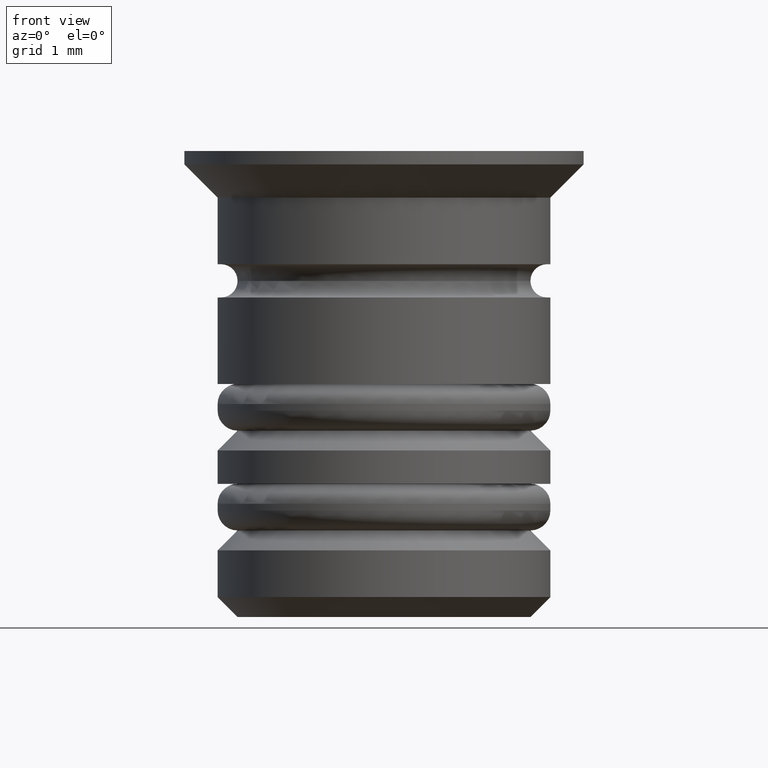
[diagram: clean part render]
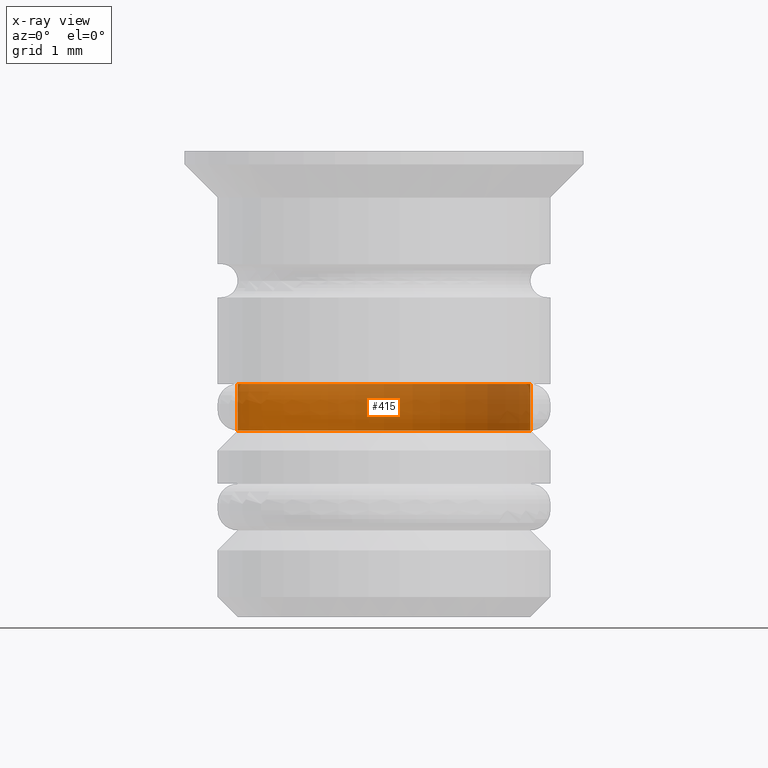
[diagram: x-ray — body ghosted, one internal face saturated and labeled with its STEP entity id]
A machine part, front view, then the same camera in x-ray: the body is ghosted and one INTERNAL B-rep face — a face not visible from any outside direction — is saturated and labeled: STEP entity #415.
In plain terms, the highlighted cylindrical surface (partial cylindrical patch) has radius 2.2 mm, axis along (-0, -0, 1).
Its self-contained STEP definition (entity closure, byte-faithful):
#71 = CIRCLE ( 'NONE', #751, 2.200000000000002398 ) ;
#75 = DIRECTION ( 'NONE',  ( -0.000000000000000000, -0.000000000000000000, 1.000000000000000000 ) ) ;
#129 = DIRECTION ( 'NONE',  ( -0.000000000000000000, -0.000000000000000000, 1.000000000000000000 ) ) ;
#143 = CYLINDRICAL_SURFACE ( 'NONE', #569, 2.200000000000002398 ) ;
#148 = VERTEX_POINT ( 'NONE', #174 ) ;
#174 = CARTESIAN_POINT ( 'NONE',  ( 2.200000000000001954, 0.000000000000000000, -3.500000000000003553 ) ) ;
#188 = ORIENTED_EDGE ( 'NONE', *, *, #1314, .F. ) ;
#415 = ADVANCED_FACE ( 'NONE', ( #1406 ), #143, .T. ) ;
#479 = ORIENTED_EDGE ( 'NONE', *, *, #642, .T. ) ;
#484 = VERTEX_POINT ( 'NONE', #1737 ) ;
#569 = AXIS2_PLACEMENT_3D ( 'NONE', #1673, #1131, #1666 ) ;
#642 = EDGE_CURVE ( 'NONE', #484, #1380, #1780, .T. ) ;
#671 = CARTESIAN_POINT ( 'NONE',  ( 2.200000000000002398, 0.000000000000000000, -4.200000000000010836 ) ) ;
#699 = DIRECTION ( 'NONE',  ( -1.000000000000000000, 0.000000000000000000, 0.000000000000000000 ) ) ;
#729 = ORIENTED_EDGE ( 'NONE', *, *, #1272, .T. ) ;
#751 = AXIS2_PLACEMENT_3D ( 'NONE', #1829, #129, #699 ) ;
#890 = VERTEX_POINT ( 'NONE', #671 ) ;
#904 = CARTESIAN_POINT ( 'NONE',  ( -2.200000000000002398, 2.694222958124179965E-16, 0.000000000000000000 ) ) ;
#911 = ORIENTED_EDGE ( 'NONE', *, *, #1405, .F. ) ;
#943 = CARTESIAN_POINT ( 'NONE',  ( 0.000000000000000000, 0.000000000000000000, -3.500000000000003553 ) ) ;
#966 = DIRECTION ( 'NONE',  ( 1.000000000000000000, 0.000000000000000000, 0.000000000000000000 ) ) ;
#1063 = AXIS2_PLACEMENT_3D ( 'NONE', #943, #1362, #966 ) ;
#1068 = CIRCLE ( 'NONE', #1063, 2.200000000000001954 ) ;
#1088 = LINE ( 'NONE', #1512, #1716 ) ;
#1098 = DIRECTION ( 'NONE',  ( -0.000000000000000000, -0.000000000000000000, 1.000000000000000000 ) ) ;
#1131 = DIRECTION ( 'NONE',  ( -0.000000000000000000, -0.000000000000000000, 1.000000000000000000 ) ) ;
#1272 = EDGE_CURVE ( 'NONE', #890, #484, #71, .T. ) ;
#1314 = EDGE_CURVE ( 'NONE', #148, #1380, #1068, .T. ) ;
#1362 = DIRECTION ( 'NONE',  ( -0.000000000000000000, -0.000000000000000000, 1.000000000000000000 ) ) ;
#1380 = VERTEX_POINT ( 'NONE', #1641 ) ;
#1405 = EDGE_CURVE ( 'NONE', #890, #148, #1088, .T. ) ;
#1406 = FACE_OUTER_BOUND ( 'NONE', #1790, .T. ) ;
#1452 = VECTOR ( 'NONE', #75, 1000.000000000000000 ) ;
#1512 = CARTESIAN_POINT ( 'NONE',  ( 2.200000000000002398, 0.000000000000000000, 0.000000000000000000 ) ) ;
#1641 = CARTESIAN_POINT ( 'NONE',  ( -2.200000000000001954, 2.694222958124179472E-16, -3.500000000000003553 ) ) ;
#1666 = DIRECTION ( 'NONE',  ( 1.000000000000000000, 0.000000000000000000, 0.000000000000000000 ) ) ;
#1673 = CARTESIAN_POINT ( 'NONE',  ( 0.000000000000000000, 0.000000000000000000, 0.000000000000000000 ) ) ;
#1716 = VECTOR ( 'NONE', #1098, 1000.000000000000000 ) ;
#1737 = CARTESIAN_POINT ( 'NONE',  ( -2.200000000000002398, 2.694222958124179965E-16, -4.200000000000010836 ) ) ;
#1780 = LINE ( 'NONE', #904, #1452 ) ;
#1790 = EDGE_LOOP ( 'NONE', ( #729, #479, #188, #911 ) ) ;
#1829 = CARTESIAN_POINT ( 'NONE',  ( 0.000000000000000000, 0.000000000000000000, -4.200000000000010836 ) ) ;